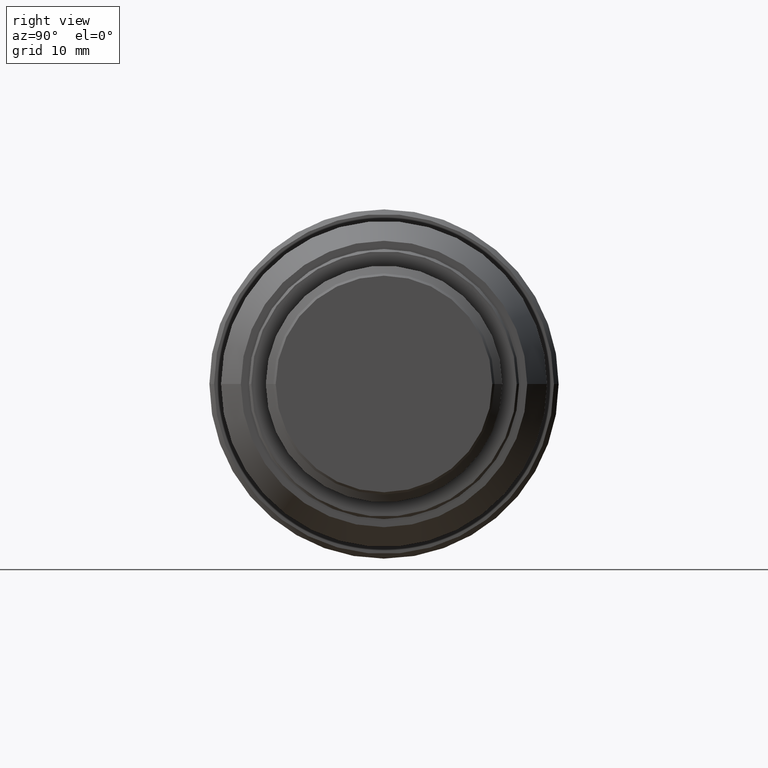
[diagram: clean part render]
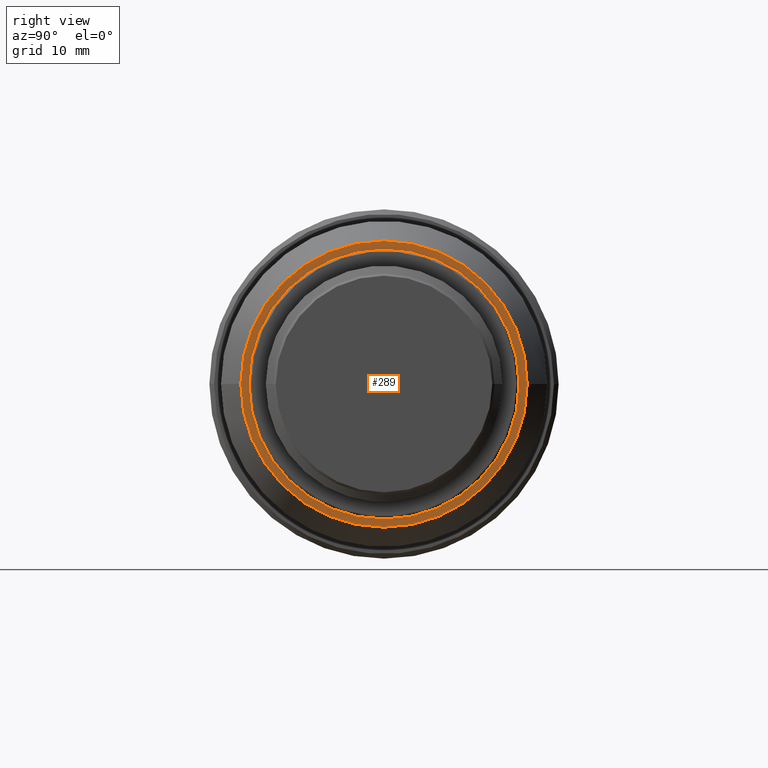
[diagram: same view with one face highlighted and labeled with its STEP entity id]
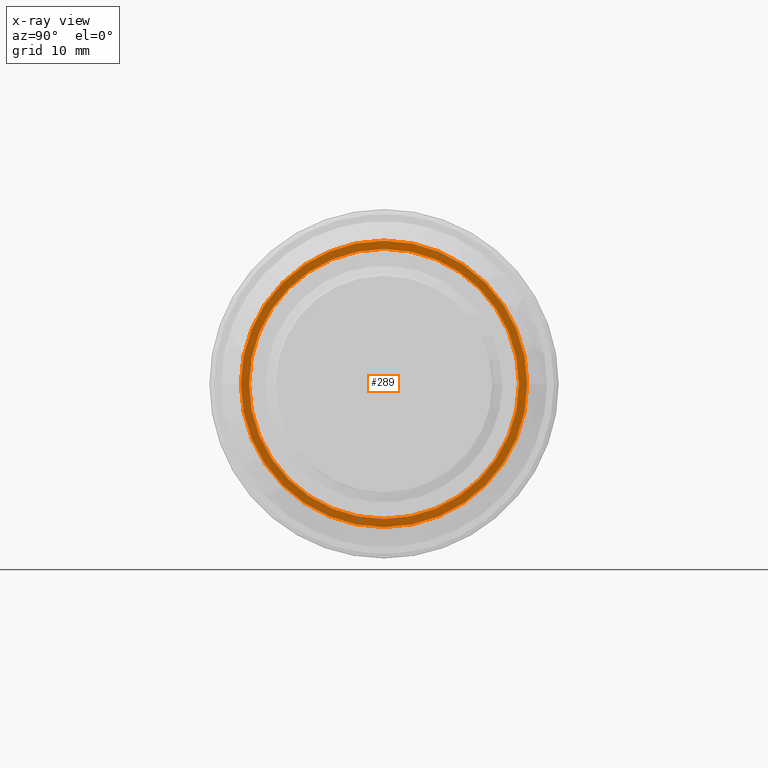
[diagram: x-ray of the same camera — body ghosted, the highlighted face saturated]
A machine part, right view. The second image highlights one B-rep face of the part: STEP entity #289.
The next image is the same camera in x-ray: the body ghosted, the highlighted face saturated — about 0% of this face is hidden behind the body in this view.
In plain terms, the highlighted planar face has unit normal (1, 0, 0).
Its self-contained STEP definition (entity closure, byte-faithful):
#30 = DIRECTION ( 'NONE',  ( 0.000000000000000000, -1.000000000000000000, 0.000000000000000000 ) ) ;
#40 = CIRCLE ( 'NONE', #462, 12.30000000000000071 ) ;
#48 = DIRECTION ( 'NONE',  ( 1.000000000000000000, -1.250955520704399823E-16, 0.000000000000000000 ) ) ;
#72 = EDGE_CURVE ( 'NONE', #1015, #639, #957, .T. ) ;
#84 = ORIENTED_EDGE ( 'NONE', *, *, #1000, .T. ) ;
#171 = CARTESIAN_POINT ( 'NONE',  ( 44.18961399999999884, -2.732086857218409751E-15, 0.000000000000000000 ) ) ;
#212 = VERTEX_POINT ( 'NONE', #1036 ) ;
#242 = FACE_OUTER_BOUND ( 'NONE', #262, .T. ) ;
#262 = EDGE_LOOP ( 'NONE', ( #1165, #84 ) ) ;
#274 = CARTESIAN_POINT ( 'NONE',  ( 44.18961399999999884, -2.732086857218409751E-15, 0.000000000000000000 ) ) ;
#289 = ADVANCED_FACE ( 'NONE', ( #242, #1057 ), #1389, .T. ) ;
#384 = CARTESIAN_POINT ( 'NONE',  ( 44.18961399999999884, -11.95000000000000107, 0.000000000000000000 ) ) ;
#424 = DIRECTION ( 'NONE',  ( 1.000000000000000000, -1.250955520704399823E-16, 0.000000000000000000 ) ) ;
#454 = CARTESIAN_POINT ( 'NONE',  ( 44.18961399999999884, -2.732086857218409751E-15, 0.000000000000000000 ) ) ;
#456 = EDGE_LOOP ( 'NONE', ( #872, #1017 ) ) ;
#462 = AXIS2_PLACEMENT_3D ( 'NONE', #454, #780, #471 ) ;
#471 = DIRECTION ( 'NONE',  ( 0.000000000000000000, -1.000000000000000000, 0.000000000000000000 ) ) ;
#593 = AXIS2_PLACEMENT_3D ( 'NONE', #1342, #424, #996 ) ;
#604 = VERTEX_POINT ( 'NONE', #710 ) ;
#639 = VERTEX_POINT ( 'NONE', #1421 ) ;
#649 = CIRCLE ( 'NONE', #730, 12.30000000000000071 ) ;
#666 = AXIS2_PLACEMENT_3D ( 'NONE', #384, #1284, #706 ) ;
#706 = DIRECTION ( 'NONE',  ( -1.250955520704399823E-16, -1.000000000000000000, 0.000000000000000000 ) ) ;
#710 = CARTESIAN_POINT ( 'NONE',  ( 44.18961399999999884, -12.30000000000000071, 0.000000000000000000 ) ) ;
#730 = AXIS2_PLACEMENT_3D ( 'NONE', #274, #1172, #30 ) ;
#780 = DIRECTION ( 'NONE',  ( 1.000000000000000000, -1.250955520704399823E-16, 0.000000000000000000 ) ) ;
#857 = EDGE_CURVE ( 'NONE', #212, #604, #40, .T. ) ;
#872 = ORIENTED_EDGE ( 'NONE', *, *, #1001, .F. ) ;
#957 = CIRCLE ( 'NONE', #593, 11.59999999999999964 ) ;
#996 = DIRECTION ( 'NONE',  ( 0.000000000000000000, -1.000000000000000000, 0.000000000000000000 ) ) ;
#1000 = EDGE_CURVE ( 'NONE', #604, #212, #649, .T. ) ;
#1001 = EDGE_CURVE ( 'NONE', #639, #1015, #1155, .T. ) ;
#1015 = VERTEX_POINT ( 'NONE', #1417 ) ;
#1017 = ORIENTED_EDGE ( 'NONE', *, *, #72, .F. ) ;
#1036 = CARTESIAN_POINT ( 'NONE',  ( 44.18961399999999884, 12.30000000000000071, 1.506315562951239877E-15 ) ) ;
#1057 = FACE_BOUND ( 'NONE', #456, .T. ) ;
#1155 = CIRCLE ( 'NONE', #1203, 11.59999999999999964 ) ;
#1165 = ORIENTED_EDGE ( 'NONE', *, *, #857, .T. ) ;
#1172 = DIRECTION ( 'NONE',  ( 1.000000000000000000, -1.250955520704399823E-16, 0.000000000000000000 ) ) ;
#1203 = AXIS2_PLACEMENT_3D ( 'NONE', #171, #48, #1302 ) ;
#1284 = DIRECTION ( 'NONE',  ( 1.000000000000000000, -1.250955520704399823E-16, 0.000000000000000000 ) ) ;
#1302 = DIRECTION ( 'NONE',  ( 0.000000000000000000, -1.000000000000000000, 0.000000000000000000 ) ) ;
#1342 = CARTESIAN_POINT ( 'NONE',  ( 44.18961399999999884, -2.732086857218409751E-15, 0.000000000000000000 ) ) ;
#1389 = PLANE ( 'NONE',  #666 ) ;
#1417 = CARTESIAN_POINT ( 'NONE',  ( 44.18961399999999884, -11.59999999999999964, 1.420590287010929927E-15 ) ) ;
#1421 = CARTESIAN_POINT ( 'NONE',  ( 44.18961399999999884, 11.59999999999999964, 0.000000000000000000 ) ) ;